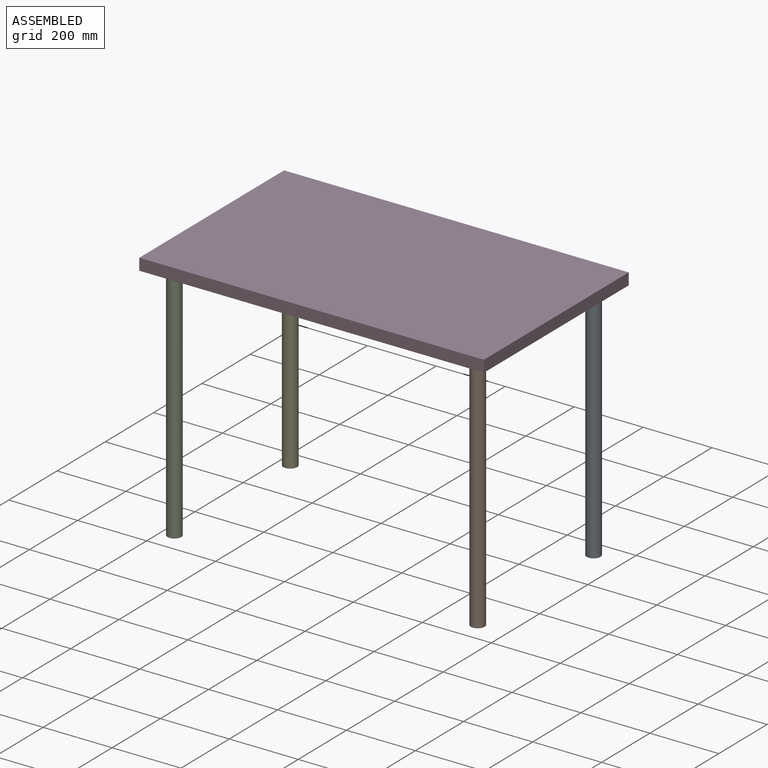
[diagram: assembled view]
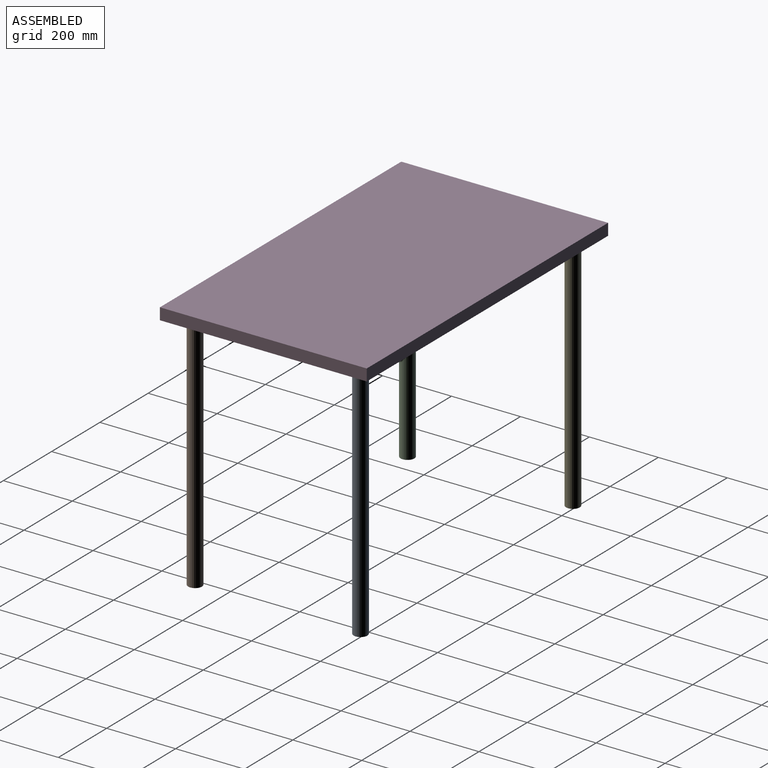
[diagram: assembled view, second angle]
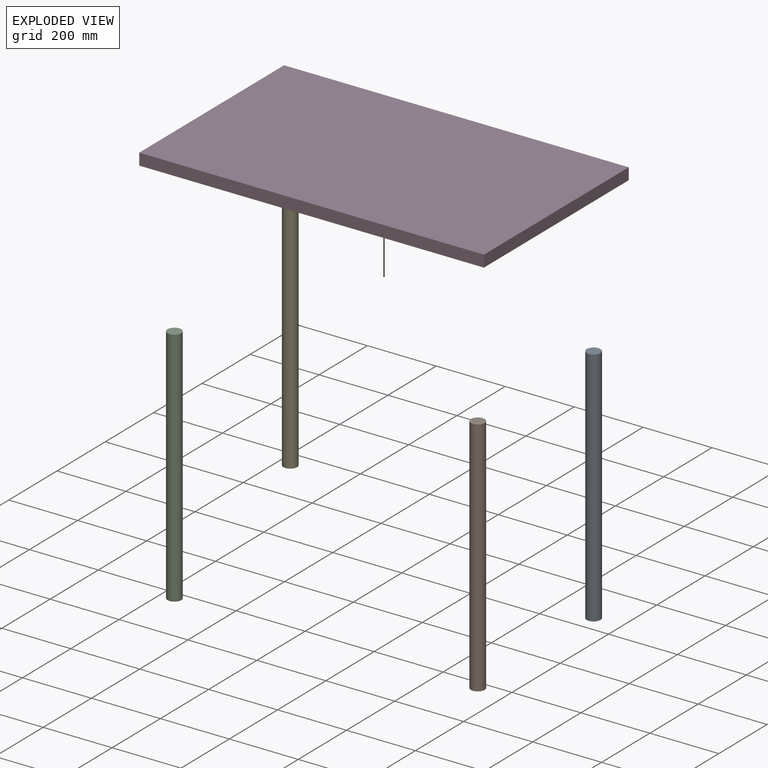
[diagram: exploded view]
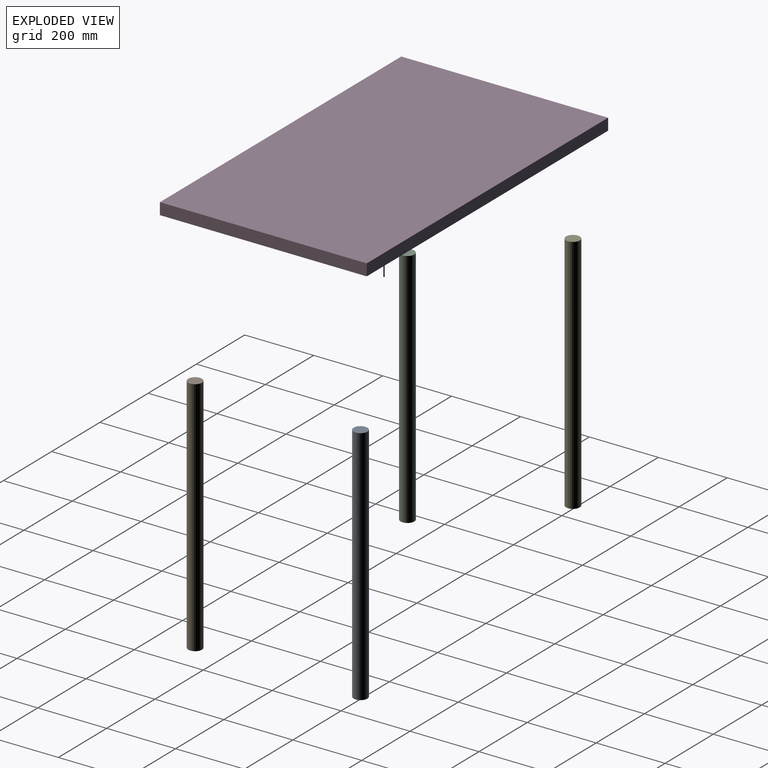
[diagram: exploded view, second angle]
ASSEMBLY  parts=5 mates=4
PART A: 3 faces, bbox 40x40x700 mm
  f0: cylinder r=20mm len=700mm, axis (0,0,1), area 87964.6mm2, adj f1,f2
  f1: plane 40x40mm, normal (0,0,-1), area 1256.6mm2, adj f0
  f2: plane 40x40mm, normal (0,0,1), area 1256.6mm2, adj f0
PART B: same geometry as A
PART C: same geometry as A
PART D: 14 faces, bbox 1000x600x34 mm
  f0: plane 1000x600mm, normal (0,0,-1), area 599921.5mm2, adj f1,f2,f3,f4,f6,f8,f10,f12
  f1: plane 600x34mm, normal (-1,0,0), area 20400mm2, adj f0,f2,f4,f5
  f2: plane 1000x34mm, normal (0,-1,0), area 34000mm2, adj f0,f1,f3,f5
  f3: plane 600x34mm, normal (1,0,0), area 20400mm2, adj f0,f2,f4,f5
  f4: plane 1000x34mm, normal (0,1,0), area 34000mm2, adj f0,f1,f3,f5
  f5: plane 1000x600mm, normal (0,0,1), area 600000mm2, adj f1,f2,f3,f4
  f6: cylinder r=2.5mm len=5mm, axis (0,0,-1), area 78.5mm2, adj f0,f7
  f7: plane 5x5mm, normal (0,0,-1), area 19.6mm2, adj f6
  f8: cylinder r=2.5mm len=5mm, axis (0,0,-1), area 78.5mm2, adj f0,f9
  f9: plane 5x5mm, normal (0,0,-1), area 19.6mm2, adj f8
  f10: cylinder r=2.5mm len=5mm, axis (0,0,-1), area 78.5mm2, adj f0,f11
  f11: plane 5x5mm, normal (0,0,-1), area 19.6mm2, adj f10
  f12: cylinder r=2.5mm len=5mm, axis (0,0,-1), area 78.5mm2, adj f0,f13
  f13: plane 5x5mm, normal (0,0,-1), area 19.6mm2, adj f12
PART E: same geometry as A
PLACE A t=(944.42,617.63,26.01)mm
PLACE B t=(944.42,137.63,26.01)mm
PLACE C t=(64.42,137.63,26.01)mm
PLACE D t=(4.42,77.63,26.01)mm fixed
PLACE E t=(64.42,617.63,26.01)mm
MATE fastened D.f6 <-> C.f0  axis (0,0,-1) through (64.42,137.63,26.01)mm
MATE fastened B.f0 <-> D.f8  axis (0,0,1) through (944.42,137.63,26.01)mm
MATE fastened A.f0 <-> D.f10  axis (0,0,1) through (944.42,617.63,26.01)mm
MATE fastened E.f0 <-> D.f12  axis (0,0,1) through (64.42,617.63,26.01)mm
